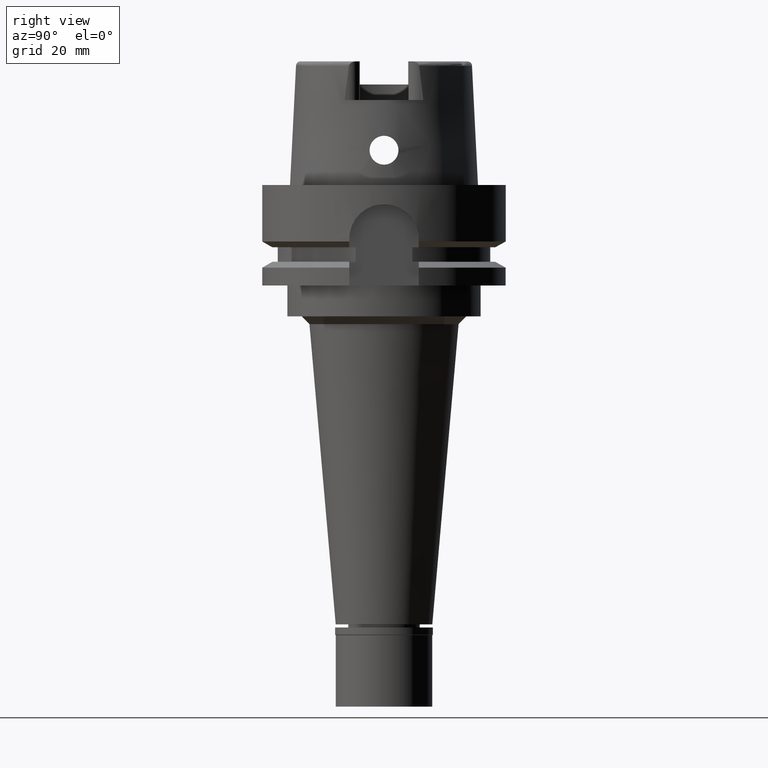
[diagram: clean part render]
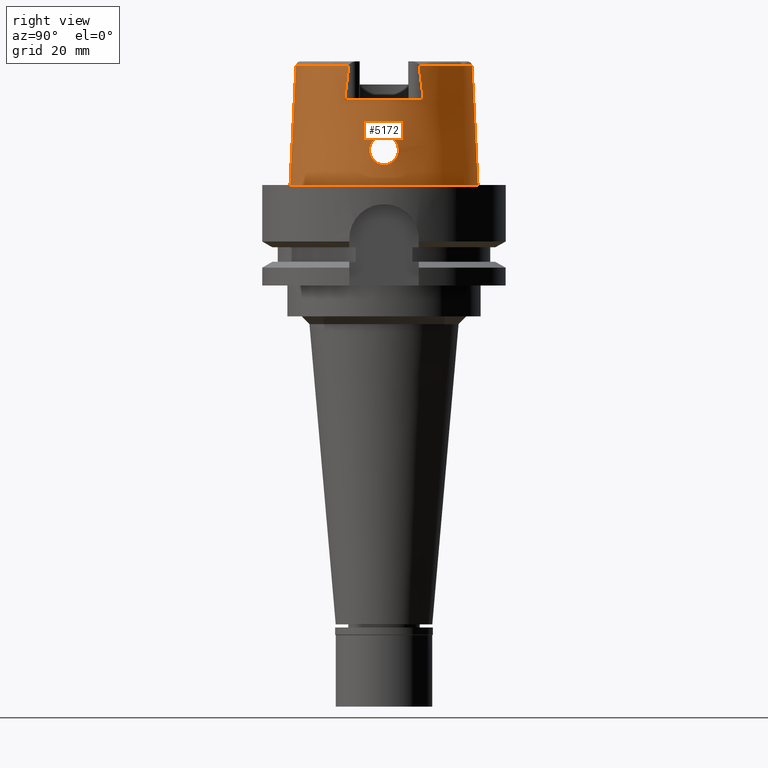
[diagram: same view with one face highlighted and labeled with its STEP entity id]
A machine part, right view. The second image highlights one B-rep face of the part: STEP entity #5172.
In plain terms, the highlighted conical surface has half-angle 2.862 deg.
Its self-contained STEP definition (entity closure, byte-faithful):
#15 = VERTEX_POINT ( 'NONE', #4648 ) ;
#19 = EDGE_CURVE ( 'NONE', #4751, #4641, #2419, .T. ) ;
#38 = CARTESIAN_POINT ( 'NONE',  ( 23.61879629123941271, -2.057734708469330709, 12.13501317386139533 ) ) ;
#63 = CARTESIAN_POINT ( 'NONE',  ( 23.82549211477736151, -2.800933865506567422, 6.505226040570392776 ) ) ;
#88 = CARTESIAN_POINT ( 'NONE',  ( 23.70700358205197844, -3.379399917876654946, 7.369886191196575176 ) ) ;
#100 = ORIENTED_EDGE ( 'NONE', *, *, #3727, .F. ) ;
#118 = CARTESIAN_POINT ( 'NONE',  ( 23.62000188273756862, -2.035425920645647757, 12.14961753321528448 ) ) ;
#130 = CARTESIAN_POINT ( 'NONE',  ( 24.05252611746999847, 0.0000000000000000000, 5.250000000000000000 ) ) ;
#145 = CARTESIAN_POINT ( 'NONE',  ( 23.66128946266028521, -3.548542694516874096, 7.784353515443169336 ) ) ;
#153 = CARTESIAN_POINT ( 'NONE',  ( 23.85419298223596840, 2.629639852071625761, 6.326504584623249272 ) ) ;
#167 = CARTESIAN_POINT ( 'NONE',  ( 23.99515835784144002, -1.437611125518185151, 5.536499203173981698 ) ) ;
#175 = CARTESIAN_POINT ( 'NONE',  ( 23.53933422189671276, 3.626026572432415218, 9.964317727025695959 ) ) ;
#181 = EDGE_CURVE ( 'NONE', #2373, #4025, #1359, .T. ) ;
#210 = CARTESIAN_POINT ( 'NONE',  ( 23.62817011169800452, 1.885504624516869399, 12.24383662026350272 ) ) ;
#242 = CARTESIAN_POINT ( 'NONE',  ( 23.83805058928416543, 2.730133117203835891, 6.426273760224660236 ) ) ;
#263 = CARTESIAN_POINT ( 'NONE',  ( 23.78102646569857725, 3.042778602954465672, 6.807331130308735823 ) ) ;
#279 = CARTESIAN_POINT ( 'NONE',  ( 24.05252611747000202, -0.4682035850652003228, 5.249999999999996447 ) ) ;
#334 = ORIENTED_EDGE ( 'NONE', *, *, #3899, .F. ) ;
#455 = CARTESIAN_POINT ( 'NONE',  ( 23.76311803917425536, -3.129629745813701902, 6.934087354890707822 ) ) ;
#486 = CARTESIAN_POINT ( 'NONE',  ( 0.0000000000000000000, 0.0000000000000000000, 22.00000000000000000 ) ) ;
#487 = CARTESIAN_POINT ( 'NONE',  ( 23.79345960972440466, -2.978224046664463831, 6.717933730454713981 ) ) ;
#492 = VERTEX_POINT ( 'NONE', #4183 ) ;
#509 = CARTESIAN_POINT ( 'NONE',  ( 23.57982168259106714, -3.750068239012439797, 8.777296837146485231 ) ) ;
#523 = CARTESIAN_POINT ( 'NONE',  ( 20.86994457043000040, 9.110917567833000774, 30.85992712280000205 ) ) ;
#532 = CARTESIAN_POINT ( 'NONE',  ( 23.63217484656949097, -1.797778673502554492, 12.29154642759965022 ) ) ;
#566 = CARTESIAN_POINT ( 'NONE',  ( 23.58633481952918487, -2.612806086784044801, 11.68997785617917984 ) ) ;
#576 = CARTESIAN_POINT ( 'NONE',  ( 23.85626869006094708, 2.616580360089957313, 6.313721774120314656 ) ) ;
#600 = CARTESIAN_POINT ( 'NONE',  ( 23.55631868313839661, 3.749673725861494500, 9.242500227184166306 ) ) ;
#626 = CARTESIAN_POINT ( 'NONE',  ( 23.62277832711500380, 1.989117033354609765, 12.18120502760653068 ) ) ;
#648 = CARTESIAN_POINT ( 'NONE',  ( 24.03360067099459485, -0.9587316947255282162, 5.338920574265283214 ) ) ;
#658 = CARTESIAN_POINT ( 'NONE',  ( 23.60482830942745380, 3.707230106430873917, 8.421915893667563324 ) ) ;
#685 = CARTESIAN_POINT ( 'NONE',  ( 0.0000000000000000000, 0.0000000000000000000, 15.42996356139999925 ) ) ;
#687 = CARTESIAN_POINT ( 'NONE',  ( 23.56160230294862856, 3.015610782114161559, 11.23302042619984853 ) ) ;
#702 = CARTESIAN_POINT ( 'NONE',  ( 23.99375469476859024, -1.454882748762394318, 5.543721527952109263 ) ) ;
#710 = CARTESIAN_POINT ( 'NONE',  ( 23.67751368057999528, 0.4544704546232919973, 12.75000000000000000 ) ) ;
#773 = CARTESIAN_POINT ( 'NONE',  ( 23.67751368057999883, 0.0000000000000000000, 12.75000000000000000 ) ) ;
#853 = LINE ( 'NONE', #4568, #5409 ) ;
#874 = CARTESIAN_POINT ( 'NONE',  ( 23.75809613586286062, -3.153638958299686657, 6.970814125699557273 ) ) ;
#900 = CARTESIAN_POINT ( 'NONE',  ( 23.54701822212678763, -3.272998541326147315, 10.83389878186195432 ) ) ;
#932 = DIRECTION ( 'NONE',  ( 0.0000000000000000000, 0.0000000000000000000, -1.000000000000000000 ) ) ;
#933 = CARTESIAN_POINT ( 'NONE',  ( 23.63992076731951286, -1.634345341606223911, 12.37735983871255918 ) ) ;
#950 = B_SPLINE_CURVE_WITH_KNOTS ( 'NONE', 3,
 ( #130, #1779, #4296, #1375, #1812, #1319, #2587, #3935, #2638, #3502, #2202, #965, #1401, #4757, #5199, #3876, #3475, #5151, #3066, #2668, #4349, #576, #153, #1834, #242, #5261, #4377, #1862, #263, #2756, #4044, #2360, #3150, #4427, #2303, #2281, #3178, #4815, #1946, #658, #1101, #1129, #1979, #3637, #1562, #1049, #600, #1484, #5317, #175, #2785, #3959, #4899, #4460, #3988, #1899, #3260, #5343, #4020, #1536, #687, #1924, #3235, #2729, #4400, #4922, #1152, #3556, #4071, #3587, #5231, #4838, #1075, #2807, #1455, #626, #210, #2334, #2386, #3611, #4482, #5289, #3665, #710, #1507 ),
 .UNSPECIFIED., .F., .F.,
 ( 4, 2, 2, 1, 1, 1, 2, 2, 2, 2, 2, 1, 1, 2, 2, 2, 2, 2, 2, 1, 2, 2, 2, 2, 1, 2, 2, 2, 2, 1, 1, 1, 2, 2, 2, 2, 2, 1, 1, 2, 2, 2, 2, 2, 2, 1, 2, 2, 4 ),
 ( 0.0000000000000000000, 0.06249999999999754363, 0.09374999999999633626, 0.1093749999999956701, 0.1171874999999953371, 0.1210937499999951983, 0.1230468749999951011, 0.1249999999999949901, 0.1874999999999924505, 0.2187499999999910905, 0.2343749999999905353, 0.2421874999999902300, 0.2460937499999900357, 0.2480468749999899247, 0.2499999999999898137, 0.2812499999999882316, 0.2968749999999874545, 0.3124999999999866773, 0.3437499999999854006, 0.3593749999999848455, 0.3671874999999846234, 0.3749999999999844569, 0.4374999999999825695, 0.4687499999999819034, 0.4843749999999818479, 0.4921874999999818479, 0.4999999999999817923, 0.5624999999999821254, 0.5937499999999822364, 0.6093749999999824585, 0.6171874999999826805, 0.6210937499999829026, 0.6230468749999827915, 0.6249999999999827915, 0.6874999999999878986, 0.7187499999999906741, 0.7343749999999920064, 0.7421874999999925615, 0.7460937499999928946, 0.7480468749999930056, 0.7499999999999931166, 0.7812499999999943379, 0.7968749999999950040, 0.8124999999999955591, 0.8437499999999965583, 0.8593749999999970024, 0.8671874999999971134, 0.8749999999999972244, 1.000000000000000000 ),
 .UNSPECIFIED. ) ;
#958 = CARTESIAN_POINT ( 'NONE',  ( 23.55530539391229894, -3.738556810819547493, 9.298850150681509774 ) ) ;
#965 = CARTESIAN_POINT ( 'NONE',  ( 23.99669686191760931, 1.418549355558025304, 5.528652208453433303 ) ) ;
#981 = CARTESIAN_POINT ( 'NONE',  ( 23.54069510199741444, -3.429599916487203526, 10.51711702627469869 ) ) ;
#992 = DIRECTION ( 'NONE',  ( 0.0000000000000000000, -1.000000000000000000, 0.0000000000000000000 ) ) ;
#1013 = CARTESIAN_POINT ( 'NONE',  ( 23.84693994594226751, -2.674180371147890423, 6.371027580572707016 ) ) ;
#1015 = ORIENTED_EDGE ( 'NONE', *, *, #3820, .F. ) ;
#1049 = CARTESIAN_POINT ( 'NONE',  ( 23.56979158351773407, 3.750036884178496788, 8.975423932546908290 ) ) ;
#1075 = CARTESIAN_POINT ( 'NONE',  ( 23.60568910285275024, 2.287295108011638600, 11.97229513510515631 ) ) ;
#1101 = CARTESIAN_POINT ( 'NONE',  ( 23.59610519306026433, 3.723760955760570202, 8.541686959840621540 ) ) ;
#1121 = CARTESIAN_POINT ( 'NONE',  ( 23.94785029665023046, -1.936134681748383768, 5.786112351795998698 ) ) ;
#1129 = CARTESIAN_POINT ( 'NONE',  ( 23.58453806143702636, 3.739855273990313922, 8.718097261074683857 ) ) ;
#1152 = CARTESIAN_POINT ( 'NONE',  ( 23.58205150924871063, 2.680327882225578939, 11.62267484949121510 ) ) ;
#1210 = CARTESIAN_POINT ( 'NONE',  ( 23.66466856730652779, -0.9480015210248482482, 12.63044045331974807 ) ) ;
#1233 = CARTESIAN_POINT ( 'NONE',  ( 23.65916351876074941, -1.131568506836641674, 12.57576969428639124 ) ) ;
#1257 = DIRECTION ( 'NONE',  ( 0.9164775804687985694, -0.4000860463675992573, 0.0000000000000000000 ) ) ;
#1290 = CARTESIAN_POINT ( 'NONE',  ( 23.67256478189348456, -3.509053511851003559, 7.676768709794101753 ) ) ;
#1312 = CARTESIAN_POINT ( 'NONE',  ( 23.59755830410115252, -2.431103675868310887, 11.85587449638481594 ) ) ;
#1316 = CARTESIAN_POINT ( 'NONE',  ( 20.87000000000000099, -9.811228181990475861, 25.12030646021867142 ) ) ;
#1319 = CARTESIAN_POINT ( 'NONE',  ( 24.01734887443144117, 1.128658019607635898, 5.423340327980231912 ) ) ;
#1329 = EDGE_CURVE ( 'NONE', #15, #4130, #3660, .T. ) ;
#1334 = CARTESIAN_POINT ( 'NONE',  ( 23.53973886479749567, -3.463638976951735504, 10.43727761456055703 ) ) ;
#1359 = CIRCLE ( 'NONE', #3400, 22.77198729362000051 ) ;
#1365 = CARTESIAN_POINT ( 'NONE',  ( 23.56707827843487024, -3.749991273092554422, 9.029127254927365342 ) ) ;
#1375 = CARTESIAN_POINT ( 'NONE',  ( 24.03376492118276175, 0.8302503275804992144, 5.341037634394287359 ) ) ;
#1386 = ORIENTED_EDGE ( 'NONE', *, *, #3723, .T. ) ;
#1390 = CARTESIAN_POINT ( 'NONE',  ( 23.73431411231837274, -3.262931481378842591, 7.150631512283213809 ) ) ;
#1401 = CARTESIAN_POINT ( 'NONE',  ( 23.98170386271037202, 1.606147211016998977, 5.605672157472583628 ) ) ;
#1435 = CIRCLE ( 'NONE', #5132, 22.77198729362001117 ) ;
#1446 = CARTESIAN_POINT ( 'NONE',  ( 23.91154306456595791, -2.246422067453492488, 5.987218365123919916 ) ) ;
#1455 = CARTESIAN_POINT ( 'NONE',  ( 23.61434003776744817, 2.137342432453318786, 12.08185095785749041 ) ) ;
#1484 = CARTESIAN_POINT ( 'NONE',  ( 23.54795101418594427, 3.726731211790009546, 9.483740643491037403 ) ) ;
#1493 = ORIENTED_EDGE ( 'NONE', *, *, #2742, .T. ) ;
#1507 = CARTESIAN_POINT ( 'NONE',  ( 23.67751368057999883, 0.0000000000000000000, 12.75000000000000000 ) ) ;
#1509 = CARTESIAN_POINT ( 'NONE',  ( 0.0000000000000000000, 22.77198729362000051, 30.85992712280000205 ) ) ;
#1525 = CARTESIAN_POINT ( 'NONE',  ( 23.95890165967163909, -1.832947053380026947, 5.726470688663260589 ) ) ;
#1536 = CARTESIAN_POINT ( 'NONE',  ( 23.55727292430830744, 3.089654960027925057, 11.12871882642762245 ) ) ;
#1562 = CARTESIAN_POINT ( 'NONE',  ( 23.57120184079807146, 3.749755573837370015, 8.948554177804066256 ) ) ;
#1586 = EDGE_LOOP ( 'NONE', ( #1650, #1386, #3173, #2022, #100, #4870, #334, #1493 ) ) ;
#1611 = CARTESIAN_POINT ( 'NONE',  ( 23.67751368058000239, -0.2270527362676618144, 12.75000000000000178 ) ) ;
#1643 = CARTESIAN_POINT ( 'NONE',  ( 23.64876270438585237, -1.422550190603431686, 12.46971456141644552 ) ) ;
#1650 = ORIENTED_EDGE ( 'NONE', *, *, #19, .F. ) ;
#1719 = CARTESIAN_POINT ( 'NONE',  ( 23.56097843016052806, -3.013414991672116905, 11.24542846782836669 ) ) ;
#1743 = CARTESIAN_POINT ( 'NONE',  ( 23.83799574183584724, -2.727673456137098995, 6.426295646155351982 ) ) ;
#1769 = CARTESIAN_POINT ( 'NONE',  ( 23.60596895125010519, -2.288633734432574673, 11.97317885726772424 ) ) ;
#1779 = CARTESIAN_POINT ( 'NONE',  ( 24.05252611746999136, 0.2332082558146015006, 5.249999999999998224 ) ) ;
#1801 = CARTESIAN_POINT ( 'NONE',  ( 23.56555343089410925, -3.749630948750204862, 9.060427666690905824 ) ) ;
#1812 = CARTESIAN_POINT ( 'NONE',  ( 24.02790204734300517, 0.9499289938177079007, 5.370180686946913085 ) ) ;
#1817 = CARTESIAN_POINT ( 'NONE',  ( 20.87000000000000099, -10.16755860605000095, 22.00000000000000000 ) ) ;
#1826 = CARTESIAN_POINT ( 'NONE',  ( 23.58493108955732964, -2.634781396573413481, 11.66845713964844578 ) ) ;
#1831 = FACE_BOUND ( 'NONE', #5373, .T. ) ;
#1834 = CARTESIAN_POINT ( 'NONE',  ( 23.85298168054950452, 2.637213789784339735, 6.333979974390357981 ) ) ;
#1838 = CARTESIAN_POINT ( 'NONE',  ( 0.0000000000000000000, 0.0000000000000000000, -7.389644451905000534E-13 ) ) ;
#1862 = CARTESIAN_POINT ( 'NONE',  ( 23.79537487801190565, 2.969081839856078986, 6.708526363462252284 ) ) ;
#1895 = CARTESIAN_POINT ( 'NONE',  ( 20.87000000000000099, -10.16755860605000095, 22.00000000000000000 ) ) ;
#1897 = DIRECTION ( 'NONE',  ( 0.0000000000000000000, 0.0000000000000000000, -1.000000000000000000 ) ) ;
#1899 = CARTESIAN_POINT ( 'NONE',  ( 23.53958799336297147, 3.469600978734524332, 10.42282509566117454 ) ) ;
#1924 = CARTESIAN_POINT ( 'NONE',  ( 23.56910458896343386, 2.890915830154840993, 11.38946705694332273 ) ) ;
#1946 = CARTESIAN_POINT ( 'NONE',  ( 23.63403274438405788, 3.638170083091610163, 8.058106359197729773 ) ) ;
#1979 = CARTESIAN_POINT ( 'NONE',  ( 23.57913388135730415, 3.745727953488142692, 8.805494264415173689 ) ) ;
#2022 = ORIENTED_EDGE ( 'NONE', *, *, #1329, .T. ) ;
#2077 = DIRECTION ( 'NONE',  ( 0.0000000000000000000, 0.0000000000000000000, 1.000000000000000000 ) ) ;
#2136 = CARTESIAN_POINT ( 'NONE',  ( 23.54014370228766140, -3.448436697797157002, 10.47346664705670705 ) ) ;
#2167 = CARTESIAN_POINT ( 'NONE',  ( 23.81480233834314575, -2.861202117750735852, 6.575168320468326222 ) ) ;
#2193 = CARTESIAN_POINT ( 'NONE',  ( 23.62407932443717229, -3.661718130671591354, 8.181886839479858509 ) ) ;
#2202 = CARTESIAN_POINT ( 'NONE',  ( 23.99741052300608146, 1.409557545798487688, 5.524987733621387065 ) ) ;
#2220 = CARTESIAN_POINT ( 'NONE',  ( 23.57093148059706422, -2.851312322137502964, 11.45125664498565676 ) ) ;
#2248 = CARTESIAN_POINT ( 'NONE',  ( 23.53993061427026134, -3.456305277186011882, 10.45481928212866052 ) ) ;
#2273 = CARTESIAN_POINT ( 'NONE',  ( 23.84848252453317130, -2.664876084174042425, 6.361583425382918655 ) ) ;
#2281 = CARTESIAN_POINT ( 'NONE',  ( 23.69164844293517547, 3.438539706537261598, 7.503357657821284832 ) ) ;
#2296 = CARTESIAN_POINT ( 'NONE',  ( 20.87000000000000099, 9.459419187967647247, 28.07088142031913591 ) ) ;
#2303 = CARTESIAN_POINT ( 'NONE',  ( 23.69823552665014788, 3.412894739649213083, 7.445766069759683248 ) ) ;
#2309 = EDGE_CURVE ( 'NONE', #492, #15, #4045, .T. ) ;
#2334 = CARTESIAN_POINT ( 'NONE',  ( 23.63590717609945457, 1.723178002157525368, 12.33120601282623419 ) ) ;
#2360 = CARTESIAN_POINT ( 'NONE',  ( 23.73862460721920087, 3.243260586657136901, 7.113452140663918399 ) ) ;
#2373 = VERTEX_POINT ( 'NONE', #1509 ) ;
#2386 = CARTESIAN_POINT ( 'NONE',  ( 23.63968805518191019, 1.640290316339456211, 12.37324556414428756 ) ) ;
#2417 = CARTESIAN_POINT ( 'NONE',  ( 0.0000000000000000000, 0.0000000000000000000, 30.85992712280000205 ) ) ;
#2419 = B_SPLINE_CURVE_WITH_KNOTS ( 'NONE', 3,
 ( #3422, #5087, #1316, #1895 ),
 .UNSPECIFIED., .F., .F.,
 ( 4, 4 ),
 ( 0.0000000000000000000, 1.000000000000000000 ),
 .UNSPECIFIED. ) ;
#2470 = CARTESIAN_POINT ( 'NONE',  ( 23.65618161746512627, -1.223503328308887195, 12.54583698890253274 ) ) ;
#2497 = CARTESIAN_POINT ( 'NONE',  ( 23.65026082306563993, -1.384310148482608582, 12.48520600131586455 ) ) ;
#2548 = CARTESIAN_POINT ( 'NONE',  ( 23.65218525758901080, -3.578295389607364818, 7.876444168290098524 ) ) ;
#2574 = CARTESIAN_POINT ( 'NONE',  ( 23.58431437941556652, -2.644385107847626148, 11.65895182873958902 ) ) ;
#2587 = CARTESIAN_POINT ( 'NONE',  ( 24.01163257243768712, 1.217823858187188968, 5.452279870741744361 ) ) ;
#2588 = CONICAL_SURFACE ( 'NONE', #3304, 23.54351105844999736, 0.04996004983832824653 ) ;
#2609 = CARTESIAN_POINT ( 'NONE',  ( 23.55879067858394649, -3.744993421196849859, 9.209173547540833837 ) ) ;
#2630 = CARTESIAN_POINT ( 'NONE',  ( 23.54900819717419935, -3.721293834410862367, 9.478482976840412633 ) ) ;
#2638 = CARTESIAN_POINT ( 'NONE',  ( 24.00028241511352078, 1.372815958701181449, 5.510255814242761119 ) ) ;
#2659 = CARTESIAN_POINT ( 'NONE',  ( 23.62502149928324613, -1.940117837034764259, 12.20929256231408822 ) ) ;
#2668 = CARTESIAN_POINT ( 'NONE',  ( 23.86650366459297246, 2.551096030933735825, 6.251058165379860476 ) ) ;
#2694 = CARTESIAN_POINT ( 'NONE',  ( 23.98860891886408098, -1.516794078511084054, 5.570259398224861158 ) ) ;
#2710 = CARTESIAN_POINT ( 'NONE',  ( 20.87000527243999670, -9.110771420352000050, 30.85992623711999983 ) ) ;
#2720 = CARTESIAN_POINT ( 'NONE',  ( 20.87000000000000099, 9.811659030624156230, 25.11757557699920085 ) ) ;
#2729 = CARTESIAN_POINT ( 'NONE',  ( 23.57602863934530291, 2.777759321683796134, 11.51947629268215856 ) ) ;
#2742 = EDGE_CURVE ( 'NONE', #5059, #4641, #3544, .T. ) ;
#2747 = CARTESIAN_POINT ( 'NONE',  ( 24.05252611746999847, 0.0000000000000000000, 5.250000000000000000 ) ) ;
#2756 = CARTESIAN_POINT ( 'NONE',  ( 23.77366700043367942, 3.079173082253712668, 6.858779674813768601 ) ) ;
#2785 = CARTESIAN_POINT ( 'NONE',  ( 23.53847083392613726, 3.572112042969592061, 10.14297195859395373 ) ) ;
#2807 = CARTESIAN_POINT ( 'NONE',  ( 23.61138171876325131, 2.188930179217297933, 12.04546251853728478 ) ) ;
#2922 = AXIS2_PLACEMENT_3D ( 'NONE', #486, #932, #4288 ) ;
#2968 = CARTESIAN_POINT ( 'NONE',  ( 23.74548095048812257, -3.212431580612568727, 7.065089212969681398 ) ) ;
#2993 = CARTESIAN_POINT ( 'NONE',  ( 23.58844020497476990, -2.579644544121417304, 11.72205615858304206 ) ) ;
#3025 = CARTESIAN_POINT ( 'NONE',  ( 23.54351736285893182, -3.352606904099303176, 10.68101992700715464 ) ) ;
#3057 = CARTESIAN_POINT ( 'NONE',  ( 23.68360975932775148, -3.468792754104705445, 7.575212639625886979 ) ) ;
#3066 = CARTESIAN_POINT ( 'NONE',  ( 23.87245292111399664, 2.511601212707295527, 6.215112261049897668 ) ) ;
#3081 = CARTESIAN_POINT ( 'NONE',  ( 23.61157157975620535, -2.189802232113630787, 12.04670364031655971 ) ) ;
#3150 = CARTESIAN_POINT ( 'NONE',  ( 23.71825165375955180, 3.331218674121533052, 7.276832086006630895 ) ) ;
#3173 = ORIENTED_EDGE ( 'NONE', *, *, #2309, .T. ) ;
#3178 = CARTESIAN_POINT ( 'NONE',  ( 23.68855773261116582, 3.450345891737807147, 7.530735757492126758 ) ) ;
#3227 = CARTESIAN_POINT ( 'NONE',  ( 23.97390213269370918, -1.680134168138627482, 5.646949681227264151 ) ) ;
#3235 = CARTESIAN_POINT ( 'NONE',  ( 23.57177338731075267, 2.847081383180391612, 11.44160974602868208 ) ) ;
#3260 = CARTESIAN_POINT ( 'NONE',  ( 23.53967749511006247, 3.465959308388742777, 10.43166505040752945 ) ) ;
#3304 = AXIS2_PLACEMENT_3D ( 'NONE', #685, #1897, #3585 ) ;
#3313 = CARTESIAN_POINT ( 'NONE',  ( 23.67506699233743461, -0.4637114325410614524, 12.72933735191346827 ) ) ;
#3361 = DIRECTION ( 'NONE',  ( -8.032179027593385064E-05, 0.04993928193351242217, -0.9987522523971473776 ) ) ;
#3388 = CARTESIAN_POINT ( 'NONE',  ( 23.65230132283041797, -1.330737351290988135, 12.50621223590636788 ) ) ;
#3400 = AXIS2_PLACEMENT_3D ( 'NONE', #4729, #4703, #5169 ) ;
#3417 = CARTESIAN_POINT ( 'NONE',  ( 23.61798710721984662, -2.072640985861273766, 12.12517824682878853 ) ) ;
#3422 = CARTESIAN_POINT ( 'NONE',  ( 20.87000527243999670, -9.110771420352000050, 30.85992623711999983 ) ) ;
#3440 = CARTESIAN_POINT ( 'NONE',  ( 23.84336134369347349, -2.695658929911587176, 6.393055510155618570 ) ) ;
#3464 = CARTESIAN_POINT ( 'NONE',  ( 23.67836587817260252, -3.488093159789718012, 7.622979706061258298 ) ) ;
#3475 = CARTESIAN_POINT ( 'NONE',  ( 23.89161689549474943, 2.379555829655331856, 6.100904176340963048 ) ) ;
#3494 = CARTESIAN_POINT ( 'NONE',  ( 23.54201467876000109, -3.389988276490581764, 10.60494540767205507 ) ) ;
#3502 = CARTESIAN_POINT ( 'NONE',  ( 23.99856477629326079, 1.394866584811591093, 5.519064789891179323 ) ) ;
#3519 = CARTESIAN_POINT ( 'NONE',  ( 23.53728686232623346, -3.562649023848757590, 10.19725586423190933 ) ) ;
#3534 = ORIENTED_EDGE ( 'NONE', *, *, #3695, .F. ) ;
#3544 = CIRCLE ( 'NONE', #2922, 23.21499834174998966 ) ;
#3556 = CARTESIAN_POINT ( 'NONE',  ( 23.58283423382094668, 2.667714300202541633, 11.63550400016476161 ) ) ;
#3585 = DIRECTION ( 'NONE',  ( 0.0000000000000000000, -1.000000000000000000, 0.0000000000000000000 ) ) ;
#3587 = CARTESIAN_POINT ( 'NONE',  ( 23.58900358616900306, 2.568407614675035866, 11.73510720999080092 ) ) ;
#3605 = CARTESIAN_POINT ( 'NONE',  ( 23.88313405248303667, -2.454470983816212648, 6.151043544535953700 ) ) ;
#3611 = CARTESIAN_POINT ( 'NONE',  ( 23.64333745458699099, 1.554894452985533748, 12.41259331056408755 ) ) ;
#3637 = CARTESIAN_POINT ( 'NONE',  ( 23.57429877987538802, 3.748539191185921382, 8.891522037772482179 ) ) ;
#3660 = CIRCLE ( 'NONE', #5426, 24.31503482328999866 ) ;
#3665 = CARTESIAN_POINT ( 'NONE',  ( 23.66770947321636598, 0.9495137581037211838, 12.66633947292804763 ) ) ;
#3695 = EDGE_CURVE ( 'NONE', #3981, #4422, #950, .T. ) ;
#3723 = EDGE_CURVE ( 'NONE', #4751, #492, #1435, .T. ) ;
#3727 = EDGE_CURVE ( 'NONE', #2373, #4130, #853, .T. ) ;
#3765 = CARTESIAN_POINT ( 'NONE',  ( 23.66772692760973484, -0.8260351862913545284, 12.65995726959621059 ) ) ;
#3814 = CARTESIAN_POINT ( 'NONE',  ( 23.72722208280324452, -3.293879360048390659, 7.206501332563559181 ) ) ;
#3820 = EDGE_CURVE ( 'NONE', #4422, #3981, #4943, .T. ) ;
#3844 = CARTESIAN_POINT ( 'NONE',  ( 23.61751962360116508, -2.081209400613264204, 12.11947536602976072 ) ) ;
#3868 = CARTESIAN_POINT ( 'NONE',  ( 23.68257567130677543, -3.472624925466202939, 7.584569035744626042 ) ) ;
#3876 = CARTESIAN_POINT ( 'NONE',  ( 23.91319098594770765, 2.220985600363951207, 5.975451582832275399 ) ) ;
#3894 = CARTESIAN_POINT ( 'NONE',  ( 23.53979371695730194, -3.461505962225972510, 10.44240139567018488 ) ) ;
#3899 = EDGE_CURVE ( 'NONE', #5059, #4025, #5079, .T. ) ;
#3927 = CARTESIAN_POINT ( 'NONE',  ( 23.53850048352134294, -3.633705338739416923, 9.958323758175696483 ) ) ;
#3935 = CARTESIAN_POINT ( 'NONE',  ( 24.00419405125347438, 1.321269042240415637, 5.490228995178275895 ) ) ;
#3959 = CARTESIAN_POINT ( 'NONE',  ( 23.53837741267485839, 3.542828549026876495, 10.23197012100523828 ) ) ;
#3981 = VERTEX_POINT ( 'NONE', #5335 ) ;
#3988 = CARTESIAN_POINT ( 'NONE',  ( 23.53944852190178594, 3.475555214846428598, 10.40821807722831238 ) ) ;
#4020 = CARTESIAN_POINT ( 'NONE',  ( 23.54630122449590601, 3.287572051636949322, 10.82044402862209687 ) ) ;
#4025 = VERTEX_POINT ( 'NONE', #523 ) ;
#4044 = CARTESIAN_POINT ( 'NONE',  ( 23.75247844388773544, 3.179986791227622955, 7.008842192722118725 ) ) ;
#4045 = LINE ( 'NONE', #4840, #4586 ) ;
#4062 = CARTESIAN_POINT ( 'NONE',  ( 23.98100822632726548, -1.604214797325190789, 5.609672425872916257 ) ) ;
#4071 = CARTESIAN_POINT ( 'NONE',  ( 23.58328866315468275, 2.660396129912620200, 11.64288689494396145 ) ) ;
#4130 = VERTEX_POINT ( 'NONE', #5126 ) ;
#4183 = CARTESIAN_POINT ( 'NONE',  ( 0.0000000000000000000, -22.77198729362000051, 30.85992712280000205 ) ) ;
#4208 = DIRECTION ( 'NONE',  ( 0.0000000000000000000, 0.0000000000000000000, -1.000000000000000000 ) ) ;
#4231 = CARTESIAN_POINT ( 'NONE',  ( 23.76110266792598580, -3.139288946917385914, 6.948794912529041135 ) ) ;
#4261 = CARTESIAN_POINT ( 'NONE',  ( 23.77928022297826516, -3.051549592980155268, 6.816953960094120468 ) ) ;
#4288 = DIRECTION ( 'NONE',  ( 0.8989877876694615244, 0.4379736951246811505, 0.0000000000000000000 ) ) ;
#4289 = CARTESIAN_POINT ( 'NONE',  ( 23.62275763784827731, -1.983740558159610812, 12.18267102611025088 ) ) ;
#4296 = CARTESIAN_POINT ( 'NONE',  ( 24.04783581839818751, 0.4716426144665931131, 5.271818400119831161 ) ) ;
#4312 = CARTESIAN_POINT ( 'NONE',  ( 23.63472398647503425, -3.632551116252658918, 8.060119796553751215 ) ) ;
#4337 = CARTESIAN_POINT ( 'NONE',  ( 23.59335130442921269, -2.500895128702872672, 11.79546913096384131 ) ) ;
#4349 = CARTESIAN_POINT ( 'NONE',  ( 23.85936835845070547, 2.596971949323717332, 6.294668982617666941 ) ) ;
#4377 = CARTESIAN_POINT ( 'NONE',  ( 23.80252444912407128, 2.931015324959129309, 6.660032572112318583 ) ) ;
#4392 = CARTESIAN_POINT ( 'NONE',  ( 20.86994457043000040, 9.110917567833000774, 30.85992712280000205 ) ) ;
#4400 = CARTESIAN_POINT ( 'NONE',  ( 23.57821927899097858, 2.742205991894004047, 11.55832218472673745 ) ) ;
#4420 = CARTESIAN_POINT ( 'NONE',  ( 20.87000000000000099, 10.16755860605000095, 22.00000000000000000 ) ) ;
#4422 = VERTEX_POINT ( 'NONE', #773 ) ;
#4427 = CARTESIAN_POINT ( 'NONE',  ( 23.70816712741550703, 3.373459330722624827, 7.360135962478457472 ) ) ;
#4460 = CARTESIAN_POINT ( 'NONE',  ( 23.53924988573290733, 3.484413238315574812, 10.38628969556312498 ) ) ;
#4482 = CARTESIAN_POINT ( 'NONE',  ( 23.64574116981761165, 1.497417026802878137, 12.43820187177436587 ) ) ;
#4568 = CARTESIAN_POINT ( 'NONE',  ( 0.002481821280839999633, 22.77198688789000158, 30.85992712280000205 ) ) ;
#4586 = VECTOR ( 'NONE', #4786, 1000.000000000000000 ) ;
#4641 = VERTEX_POINT ( 'NONE', #1817 ) ;
#4644 = CARTESIAN_POINT ( 'NONE',  ( 23.75119656804725210, -3.186162049506395810, 7.021884683716362652 ) ) ;
#4648 = CARTESIAN_POINT ( 'NONE',  ( 0.0000000000000000000, -24.31503482328999866, -3.410605131648000255E-13 ) ) ;
#4666 = CARTESIAN_POINT ( 'NONE',  ( 23.56278099270952353, -3.748201672074578550, 9.119866509853306269 ) ) ;
#4698 = CARTESIAN_POINT ( 'NONE',  ( 23.54570789615576487, -3.703928491066350581, 9.598613783364349672 ) ) ;
#4703 = DIRECTION ( 'NONE',  ( 0.0000000000000000000, 0.0000000000000000000, -1.000000000000000000 ) ) ;
#4725 = CARTESIAN_POINT ( 'NONE',  ( 23.68088708443417545, -3.478847398743336150, 7.599932335992727772 ) ) ;
#4729 = CARTESIAN_POINT ( 'NONE',  ( 0.0000000000000000000, 0.0000000000000000000, 30.85992712280000205 ) ) ;
#4749 = CARTESIAN_POINT ( 'NONE',  ( 23.55001278306528079, -3.213459767548157320, 10.93680304920025037 ) ) ;
#4751 = VERTEX_POINT ( 'NONE', #2710 ) ;
#4757 = CARTESIAN_POINT ( 'NONE',  ( 23.96242293413265045, 1.805088116609698812, 5.703893459631730778 ) ) ;
#4786 = DIRECTION ( 'NONE',  ( 8.032179027582384478E-05, -0.04993928193351242217, -0.9987522523971473776 ) ) ;
#4815 = CARTESIAN_POINT ( 'NONE',  ( 23.65754914882853654, 3.566084928892875983, 7.809417686864185804 ) ) ;
#4838 = CARTESIAN_POINT ( 'NONE',  ( 23.60286895030068166, 2.335580404643407881, 11.93450531687260607 ) ) ;
#4840 = CARTESIAN_POINT ( 'NONE',  ( -0.002481821280835999795, -22.77198688789000158, 30.85992712280000205 ) ) ;
#4862 = FACE_OUTER_BOUND ( 'NONE', #1586, .T. ) ;
#4870 = ORIENTED_EDGE ( 'NONE', *, *, #181, .T. ) ;
#4890 = CARTESIAN_POINT ( 'NONE',  ( 23.99223682762357512, -1.473405419284910423, 5.551537743789574542 ) ) ;
#4899 = CARTESIAN_POINT ( 'NONE',  ( 23.53886039849949086, 3.504568780246596127, 10.33500209898781108 ) ) ;
#4922 = CARTESIAN_POINT ( 'NONE',  ( 23.58088529909393571, 2.699132753027755349, 11.60341009100745424 ) ) ;
#4943 = B_SPLINE_CURVE_WITH_KNOTS ( 'NONE', 3,
 ( #5397, #1611, #3313, #3765, #1210, #1233, #2470, #3388, #2497, #5429, #1643, #5053, #5450, #933, #532, #5139, #2659, #4289, #118, #38, #3417, #3844, #3081, #1769, #1312, #4337, #2993, #566, #1826, #2574, #2220, #1719, #4749, #900, #3025, #3494, #981, #2136, #2248, #3894, #1334, #3519, #3927, #4698, #2630, #958, #2609, #4666, #1801, #1365, #509, #5107, #2193, #4312, #2548, #145, #1290, #3464, #4725, #3868, #3057, #5165, #88, #3814, #1390, #2968, #4644, #874, #4231, #455, #5082, #4261, #487, #2167, #63, #1743, #3440, #1013, #2273, #3605, #1446, #1121, #1525, #3227, #4062, #2694, #4890, #702, #5281, #167, #648, #279, #2747 ),
 .UNSPECIFIED., .F., .F.,
 ( 4, 2, 2, 1, 1, 1, 2, 2, 2, 2, 1, 1, 2, 2, 2, 1, 1, 2, 2, 2, 2, 1, 1, 1, 2, 2, 2, 2, 1, 2, 2, 2, 2, 1, 1, 1, 2, 2, 2, 2, 1, 1, 2, 2, 2, 1, 1, 2, 2, 2, 2, 1, 1, 1, 2, 2, 4 ),
 ( 0.0000000000000000000, 0.06249999999999222844, 0.09374999999998834266, 0.1093749999999863720, 0.1171874999999853451, 0.1210937499999847344, 0.1230468749999843736, 0.1249999999999839989, 0.1562499999999804601, 0.1718749999999787115, 0.1796874999999778233, 0.1835937499999774625, 0.1855468749999772682, 0.1874999999999770461, 0.2187499999999734657, 0.2343749999999716338, 0.2421874999999708011, 0.2460937499999703293, 0.2499999999999698574, 0.3124999999999625855, 0.3437499999999590883, 0.3593749999999571454, 0.3671874999999563682, 0.3710937499999560352, 0.3730468749999560352, 0.3749999999999560907, 0.4374999999999593103, 0.4687499999999611422, 0.4843749999999620859, 0.4921874999999627520, 0.4999999999999634737, 0.5624999999999705791, 0.5937499999999741318, 0.6093749999999759082, 0.6171874999999770184, 0.6210937499999773515, 0.6230468749999774625, 0.6249999999999775735, 0.6562499999999810152, 0.6718749999999826805, 0.6796874999999835687, 0.6835937499999836797, 0.6855468749999836797, 0.6874999999999836797, 0.7187499999999859002, 0.7343749999999868994, 0.7421874999999874545, 0.7460937499999875655, 0.7499999999999877875, 0.8124999999999911182, 0.8437499999999926725, 0.8593749999999933387, 0.8671874999999936717, 0.8710937499999937828, 0.8730468749999938938, 0.8749999999999940048, 1.000000000000000000 ),
 .UNSPECIFIED. ) ;
#5053 = CARTESIAN_POINT ( 'NONE',  ( 23.64838886670112927, -1.431954556020454516, 12.46583997594727755 ) ) ;
#5059 = VERTEX_POINT ( 'NONE', #5114 ) ;
#5079 = B_SPLINE_CURVE_WITH_KNOTS ( 'NONE', 3,
 ( #4420, #2720, #2296, #4392 ),
 .UNSPECIFIED., .F., .F.,
 ( 4, 4 ),
 ( 0.0000000000000000000, 1.000000000000000000 ),
 .UNSPECIFIED. ) ;
#5082 = CARTESIAN_POINT ( 'NONE',  ( 23.76426679224764271, -3.124098820549221944, 6.925737307058538406 ) ) ;
#5087 = CARTESIAN_POINT ( 'NONE',  ( 20.87000000000000099, -9.458996941411141890, 28.07361520592533921 ) ) ;
#5107 = CARTESIAN_POINT ( 'NONE',  ( 23.59513389443798559, -3.730065015690784858, 8.542758022114199434 ) ) ;
#5114 = CARTESIAN_POINT ( 'NONE',  ( 20.87000000000000099, 10.16755860605000095, 22.00000000000000000 ) ) ;
#5126 = CARTESIAN_POINT ( 'NONE',  ( 0.0000000000000000000, 24.31503482328999866, -7.389644451905000534E-13 ) ) ;
#5132 = AXIS2_PLACEMENT_3D ( 'NONE', #2417, #4208, #1257 ) ;
#5139 = CARTESIAN_POINT ( 'NONE',  ( 23.62941826965417391, -1.853894652916867170, 12.26037398227659914 ) ) ;
#5151 = CARTESIAN_POINT ( 'NONE',  ( 23.88412914059294678, 2.432479066581629379, 6.145090706948534098 ) ) ;
#5165 = CARTESIAN_POINT ( 'NONE',  ( 23.69493469860993784, -3.426660438890150040, 7.473140576674484947 ) ) ;
#5169 = DIRECTION ( 'NONE',  ( 0.0000000000000000000, 1.000000000000000000, 0.0000000000000000000 ) ) ;
#5172 = ADVANCED_FACE ( 'NONE', ( #4862, #1831 ), #2588, .T. ) ;
#5199 = CARTESIAN_POINT ( 'NONE',  ( 23.92638814724640639, 2.115561554795489574, 5.901300326521254469 ) ) ;
#5231 = CARTESIAN_POINT ( 'NONE',  ( 23.59448695885403069, 2.477570689451470187, 11.81765374097003374 ) ) ;
#5261 = CARTESIAN_POINT ( 'NONE',  ( 23.82389925732696057, 2.813300137742952955, 6.517453740640923421 ) ) ;
#5281 = CARTESIAN_POINT ( 'NONE',  ( 23.99475839488865248, -1.442550788869404910, 5.538556383454962706 ) ) ;
#5289 = CARTESIAN_POINT ( 'NONE',  ( 23.64687553256864305, 1.469725341914942307, 12.45014572883841808 ) ) ;
#5317 = CARTESIAN_POINT ( 'NONE',  ( 23.54081187450104551, 3.655762180319633625, 9.844340283723548524 ) ) ;
#5335 = CARTESIAN_POINT ( 'NONE',  ( 24.05252611746999847, 0.0000000000000000000, 5.250000000000000000 ) ) ;
#5343 = CARTESIAN_POINT ( 'NONE',  ( 23.54167533943243740, 3.387224531552467166, 10.62138329613025967 ) ) ;
#5373 = EDGE_LOOP ( 'NONE', ( #3534, #1015 ) ) ;
#5397 = CARTESIAN_POINT ( 'NONE',  ( 23.67751368057999883, 0.0000000000000000000, 12.75000000000000000 ) ) ;
#5409 = VECTOR ( 'NONE', #3361, 1000.000000000000000 ) ;
#5426 = AXIS2_PLACEMENT_3D ( 'NONE', #1838, #2077, #992 ) ;
#5429 = CARTESIAN_POINT ( 'NONE',  ( 23.64936481907054855, -1.407256274749713265, 12.47594562093090786 ) ) ;
#5450 = CARTESIAN_POINT ( 'NONE',  ( 23.64438630115830620, -1.531983612760053681, 12.42431264519191103 ) ) ;